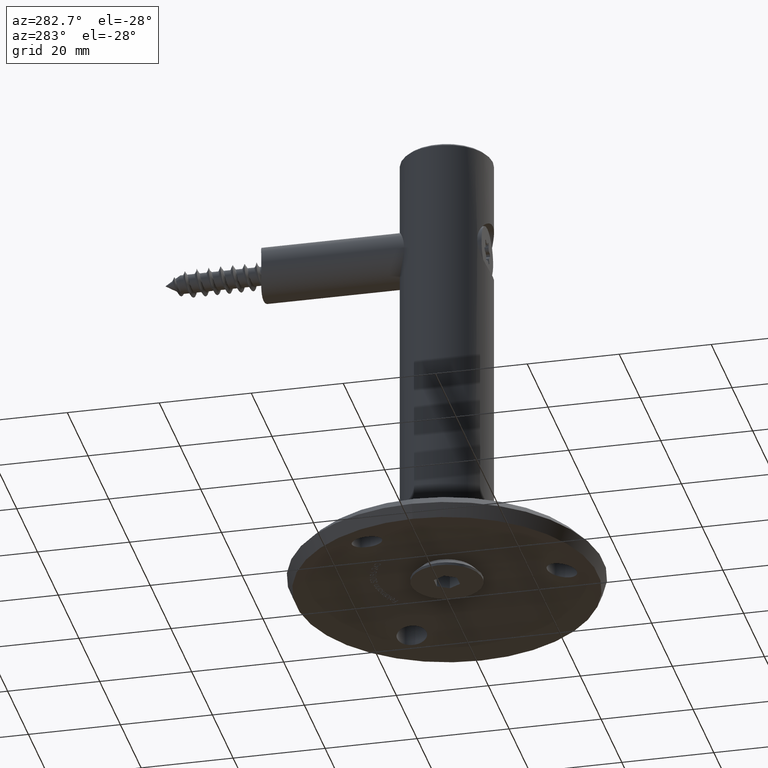
[diagram: clean part render]
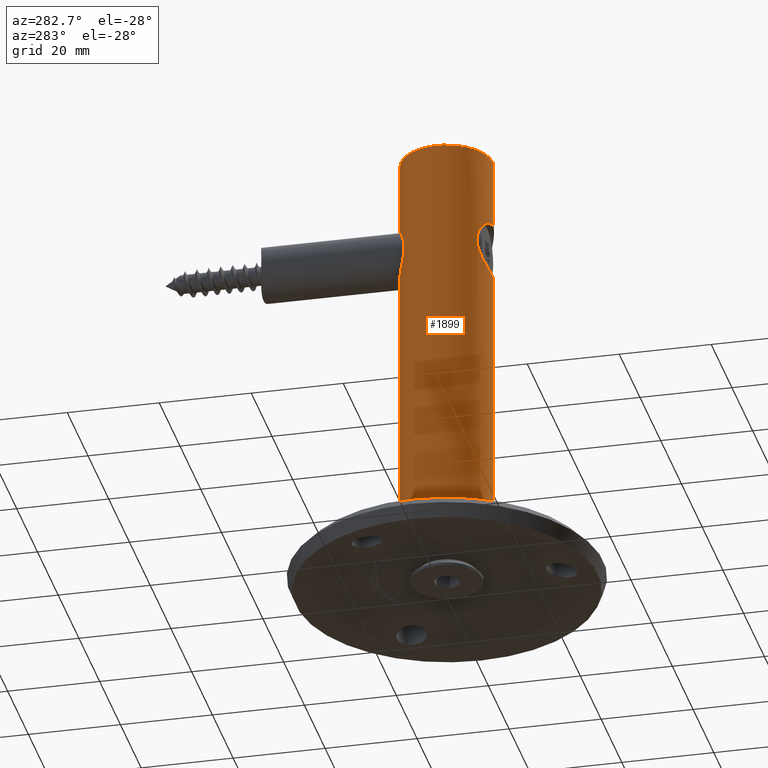
[diagram: same view with one face highlighted and labeled with its STEP entity id]
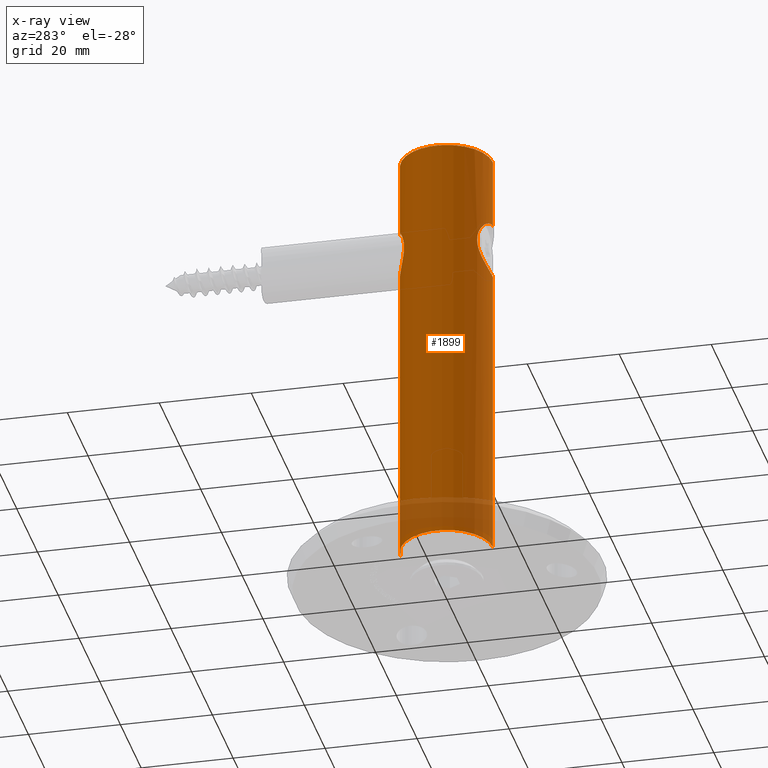
[diagram: x-ray of the same camera — body ghosted, the highlighted face saturated]
A machine part, auxiliary view. The second image highlights one B-rep face of the part: STEP entity #1899.
The next image is the same camera in x-ray: the body ghosted, the highlighted face saturated — about 8% of this face is hidden behind the body in this view.
In plain terms, the highlighted cylindrical surface (partial cylindrical patch) has radius 10 mm, axis along (0, 0, -1).
Its self-contained STEP definition (entity closure, byte-faithful):
#572 = CARTESIAN_POINT ( 'NONE',  ( -2.777311676397027362, -9.608021108032811952, 67.56603556446364678 ) ) ;
#907 = CARTESIAN_POINT ( 'NONE',  ( -1.403813005560766491, 9.902980164608125691, 67.11165916234632789 ) ) ;
#953 = CARTESIAN_POINT ( 'NONE',  ( 0.000000000000000000, 0.000000000000000000, 0.000000000000000000 ) ) ;
#1028 = DIRECTION ( 'NONE',  ( -0.000000000000000000, 1.224646799147353454E-16, -1.000000000000000000 ) ) ;
#1046 = CARTESIAN_POINT ( 'NONE',  ( -5.436598003498982479, -8.395571357975834204, 75.78795442250877556 ) ) ;
#1105 = CARTESIAN_POINT ( 'NONE',  ( 0.000000000000000000, 9.999999999999994671, 79.04999999999999716 ) ) ;
#1199 = CARTESIAN_POINT ( 'NONE',  ( -1.609276841110042433, 9.877612619151967976, 78.84584649295069880 ) ) ;
#1299 = CARTESIAN_POINT ( 'NONE',  ( -5.423591002924554871, 8.403485511692805332, 75.70970173211745191 ) ) ;
#1345 = VERTEX_POINT ( 'NONE', #8361 ) ;
#1436 = CARTESIAN_POINT ( 'NONE',  ( -1.436448137794693158, -9.902756818177692821, 78.93946100229376839 ) ) ;
#1569 = B_SPLINE_CURVE_WITH_KNOTS ( 'NONE', 3,
 ( #21354, #14920, #7849, #1436, #19321, #23714, #23522, #10087, #21452, #3396, #5584, #3505, #14826, #1046, #21650, #19028, #5775, #8235 ),
 .UNSPECIFIED., .F., .F.,
 ( 4, 2, 2, 2, 2, 2, 2, 2, 4 ),
 ( 0.008697927336527633280, 0.009782168780050413959, 0.01086641022357319290, 0.01195065166709597185, 0.01303489311061875253, 0.01411913455414153321, 0.01520337599766431215, 0.01628761744118709109, 0.01737185888470987177 ),
 .UNSPECIFIED. ) ;
#1697 = B_SPLINE_CURVE_WITH_KNOTS ( 'NONE', 3,
 ( #12243, #9990, #27819, #10081, #10368, #8140 ),
 .UNSPECIFIED., .F., .F.,
 ( 4, 2, 4 ),
 ( 0.002051106008994781071, 0.003147755811804922674, 0.004244405614615064277 ),
 .UNSPECIFIED. ) ;
#1853 = ORIENTED_EDGE ( 'NONE', *, *, #19540, .T. ) ;
#1899 = ADVANCED_FACE ( 'NONE', ( #4509 ), #18926, .T. ) ;
#2404 = VERTEX_POINT ( 'NONE', #11992 ) ;
#2645 = CARTESIAN_POINT ( 'NONE',  ( -5.440551407277116169, -8.393070850260535565, 70.21920959023715625 ) ) ;
#3172 = CARTESIAN_POINT ( 'NONE',  ( -0.4084737172014522022, 9.999999999999987566, 66.95000000000001705 ) ) ;
#3396 = CARTESIAN_POINT ( 'NONE',  ( -4.197526623192088913, -9.080918269210894067, 77.43957995125818172 ) ) ;
#3416 = DIRECTION ( 'NONE',  ( -0.000000000000000000, 1.224646799147336690E-16, -1.000000000000000000 ) ) ;
#3505 = CARTESIAN_POINT ( 'NONE',  ( -4.888823053991232293, -8.727140546316647374, 76.66459596162073353 ) ) ;
#3563 = CARTESIAN_POINT ( 'NONE',  ( -2.718732791609658861, 9.625026792267307840, 78.40830560469777311 ) ) ;
#3636 = VECTOR ( 'NONE', #3831, 1000.000000000000000 ) ;
#3831 = DIRECTION ( 'NONE',  ( -0.000000000000000000, 1.224646799147353454E-16, -1.000000000000000000 ) ) ;
#4457 = VERTEX_POINT ( 'NONE', #12058 ) ;
#4509 = FACE_OUTER_BOUND ( 'NONE', #15328, .T. ) ;
#4672 = EDGE_CURVE ( 'NONE', #4904, #13847, #5915, .T. ) ;
#4828 = VECTOR ( 'NONE', #1028, 1000.000000000000000 ) ;
#4904 = VERTEX_POINT ( 'NONE', #16791 ) ;
#5162 = VERTEX_POINT ( 'NONE', #17046 ) ;
#5292 = VECTOR ( 'NONE', #17023, 1000.000000000000000 ) ;
#5442 = CARTESIAN_POINT ( 'NONE',  ( -5.887058039441871671, 8.083627796943861910, 71.59100292581754843 ) ) ;
#5544 = CARTESIAN_POINT ( 'NONE',  ( -5.848076573791711752, 8.112340959712485144, 74.60230142844285695 ) ) ;
#5584 = CARTESIAN_POINT ( 'NONE',  ( -4.442803994972023496, -8.962425209208769061, 77.19420398614846590 ) ) ;
#5737 = CARTESIAN_POINT ( 'NONE',  ( -4.557547830525050969, 8.906156173625262795, 69.00248699821740672 ) ) ;
#5775 = CARTESIAN_POINT ( 'NONE',  ( -5.934279884923734372, -8.049290086307204106, 74.45847335496145547 ) ) ;
#5915 = LINE ( 'NONE', #27832, #4828 ) ;
#6503 = CARTESIAN_POINT ( 'NONE',  ( -5.934115237488820860, -8.049413571883382801, 71.54062856812085158 ) ) ;
#6559 = B_SPLINE_CURVE_WITH_KNOTS ( 'NONE', 3,
 ( #12502, #3172, #7809, #907, #28176, #21312, #10050, #8004, #14786, #23676, #7621, #28073, #9866, #5737, #12206, #14682, #18896, #25537, #21209, #25819, #5442, #18988, #12106, #27785, #19086, #10241, #21120, #5544, #7715, #1299, #23393, #23485, #9958, #17031, #7906, #25726, #25914, #3563, #19281, #25634, #1199, #21412, #10156, #16833, #16932, #1105 ),
 .UNSPECIFIED., .F., .F.,
 ( 4, 2, 2, 2, 2, 2, 2, 2, 2, 2, 2, 2, 2, 2, 2, 2, 2, 2, 2, 2, 2, 2, 4 ),
 ( 0.01941990436530885780, 0.02063116917293929958, 0.02123680157675451527, 0.02184243398056973096, 0.02244806638438494664, 0.02305369878820016233, 0.02426496359583059370, 0.02547622840346102854, 0.02668749321109145992, 0.02729312561490667560, 0.02789875801872189476, 0.02850439042253710697, 0.02911002282635232613, 0.03032128763398279914, 0.03153255244161327214, 0.03274381724924374515, 0.03395508205687421122, 0.03516634686450469116, 0.03577197926831991726, 0.03637761167213515723, 0.03758887647976561636, 0.03819450888358084939, 0.03880014128739607548 ),
 .UNSPECIFIED. ) ;
#6750 = ORIENTED_EDGE ( 'NONE', *, *, #14538, .F. ) ;
#7175 = CARTESIAN_POINT ( 'NONE',  ( -1.787012622460111277, -9.845037829623526804, 67.15662796590193295 ) ) ;
#7437 = CARTESIAN_POINT ( 'NONE',  ( 0.000000000000000000, -2.449293598294707400E-16, 2.000000000000000444 ) ) ;
#7593 = ORIENTED_EDGE ( 'NONE', *, *, #8563, .F. ) ;
#7621 = CARTESIAN_POINT ( 'NONE',  ( -3.230484222280025186, 9.465388038487750677, 67.88094969924306099 ) ) ;
#7715 = CARTESIAN_POINT ( 'NONE',  ( -5.729295447384023632, 8.198114526451783846, 74.98317838850394423 ) ) ;
#7809 = CARTESIAN_POINT ( 'NONE',  ( -0.8103770617381570451, 9.975074806668049021, 66.99094149490500172 ) ) ;
#7849 = CARTESIAN_POINT ( 'NONE',  ( -0.7251650388042697459, -9.980085747078266678, 79.06751315753319886 ) ) ;
#7906 = CARTESIAN_POINT ( 'NONE',  ( -3.712617640283946585, 9.291548674023585974, 77.79261931526806961 ) ) ;
#8004 = CARTESIAN_POINT ( 'NONE',  ( -2.537553960302305178, 9.674504622938620457, 67.50431735431011759 ) ) ;
#8140 = CARTESIAN_POINT ( 'NONE',  ( -5.999999999999998224, -7.999999999999994671, 71.89999999999999147 ) ) ;
#8235 = CARTESIAN_POINT ( 'NONE',  ( -5.999999999999998224, -7.999999999999994671, 74.09999999999999432 ) ) ;
#8361 = CARTESIAN_POINT ( 'NONE',  ( -5.999999999999998224, -7.999999999999994671, 74.09999999999999432 ) ) ;
#8563 = EDGE_CURVE ( 'NONE', #1345, #13874, #1697, .T. ) ;
#8702 = ORIENTED_EDGE ( 'NONE', *, *, #24557, .F. ) ;
#9030 = AXIS2_PLACEMENT_3D ( 'NONE', #7437, #18911, #16565 ) ;
#9243 = CARTESIAN_POINT ( 'NONE',  ( -4.197116238931466903, -9.081158167621740773, 68.55989034751920030 ) ) ;
#9718 = CARTESIAN_POINT ( 'NONE',  ( 0.000000000000000000, 9.999999999999994671, 79.04999999999999716 ) ) ;
#9866 = CARTESIAN_POINT ( 'NONE',  ( -4.012844323545344594, 9.164493463990080357, 68.45594532802100218 ) ) ;
#9958 = CARTESIAN_POINT ( 'NONE',  ( -4.558202457909661831, 8.905892511106925369, 76.99701834412348944 ) ) ;
#9990 = CARTESIAN_POINT ( 'NONE',  ( -6.037779974283359330, -7.971665019287484277, 73.73679706541230416 ) ) ;
#10031 = CARTESIAN_POINT ( 'NONE',  ( 1.224646799147352665E-15, -9.999999999999994671, -1.224646799147352862E-15 ) ) ;
#10050 = CARTESIAN_POINT ( 'NONE',  ( -2.172773312258164502, 9.762903048491537561, 67.35015363243199715 ) ) ;
#10081 = CARTESIAN_POINT ( 'NONE',  ( -6.056865859714453570, -7.957033113640100908, 72.62734759611845448 ) ) ;
#10087 = CARTESIAN_POINT ( 'NONE',  ( -3.385571134193873011, -9.414909622404428191, 78.08651020804522602 ) ) ;
#10156 = CARTESIAN_POINT ( 'NONE',  ( -0.8191968535057896350, 9.968482339578155660, 78.99778431032966353 ) ) ;
#10241 = CARTESIAN_POINT ( 'NONE',  ( -6.050107430202721126, 7.962173076571638752, 73.40452276754869843 ) ) ;
#10368 = CARTESIAN_POINT ( 'NONE',  ( -6.037620414525908252, -7.971784689105573918, 72.26166898510129499 ) ) ;
#10599 = AXIS2_PLACEMENT_3D ( 'NONE', #953, #25675, #14926 ) ;
#11264 = LINE ( 'NONE', #25528, #5292 ) ;
#11482 = CARTESIAN_POINT ( 'NONE',  ( -1.442266533413711471, -9.901847488652895990, 67.06205422235507285 ) ) ;
#11773 = CARTESIAN_POINT ( 'NONE',  ( -5.838174895473802195, -8.120235270157003526, 71.19730428107988018 ) ) ;
#11992 = CARTESIAN_POINT ( 'NONE',  ( 0.000000000000000000, 9.999999999999982236, 94.49999999999994316 ) ) ;
#12058 = CARTESIAN_POINT ( 'NONE',  ( 1.224646799147353651E-15, -10.00000000000000355, 66.90000000000000568 ) ) ;
#12106 = CARTESIAN_POINT ( 'NONE',  ( -5.998146223145053746, 8.001431955169667987, 72.18365544772787246 ) ) ;
#12206 = CARTESIAN_POINT ( 'NONE',  ( -4.805369897217455666, 8.773264498411421641, 69.30416128083891181 ) ) ;
#12243 = CARTESIAN_POINT ( 'NONE',  ( -5.999999999999998224, -7.999999999999994671, 74.09999999999999432 ) ) ;
#12502 = CARTESIAN_POINT ( 'NONE',  ( 4.029265264640274852E-17, 9.999999999999985789, 66.94999999999998863 ) ) ;
#12853 = VECTOR ( 'NONE', #28446, 1000.000000000000000 ) ;
#13847 = VERTEX_POINT ( 'NONE', #26722 ) ;
#13858 = CARTESIAN_POINT ( 'NONE',  ( -5.086953068162411995, -8.611976915611837313, 69.61543157838890750 ) ) ;
#13869 = ORIENTED_EDGE ( 'NONE', *, *, #4672, .F. ) ;
#13874 = VERTEX_POINT ( 'NONE', #18414 ) ;
#14058 = CARTESIAN_POINT ( 'NONE',  ( -5.591957626596479436, -8.291713746578073696, 70.53747936709092414 ) ) ;
#14150 = CARTESIAN_POINT ( 'NONE',  ( -0.7345510077027587181, -9.979336213347544060, 66.93371879742298347 ) ) ;
#14311 = CARTESIAN_POINT ( 'NONE',  ( 1.224646799147352270E-15, -9.999999999999987566, 1.999999999999999112 ) ) ;
#14538 = EDGE_CURVE ( 'NONE', #27806, #28278, #19065, .T. ) ;
#14682 = CARTESIAN_POINT ( 'NONE',  ( -5.235192493834924576, 8.523761456109879120, 69.94327573379139551 ) ) ;
#14786 = CARTESIAN_POINT ( 'NONE',  ( -2.715194575230796215, 9.626026976772983801, 67.58991585138296898 ) ) ;
#14826 = CARTESIAN_POINT ( 'NONE',  ( -5.087154368414266159, -8.611798691936368044, 76.38380675357785776 ) ) ;
#14920 = CARTESIAN_POINT ( 'NONE',  ( -0.3649548137492562572, -10.00000000000001066, 79.10000000000002274 ) ) ;
#14926 = DIRECTION ( 'NONE',  ( 0.000000000000000000, 1.000000000000000000, 1.224646799147353454E-16 ) ) ;
#15328 = EDGE_LOOP ( 'NONE', ( #13869, #17327, #22247, #16496, #1853, #6750, #16312, #27266, #7593, #8702 ) ) ;
#15345 = B_SPLINE_CURVE_WITH_KNOTS ( 'NONE', 3,
 ( #17992, #6503, #11773, #14058, #2645, #13858, #22676, #18281, #9243, #20499, #20411, #20589, #572, #22779, #16405, #7175, #11482, #14150, #25307, #25103 ),
 .UNSPECIFIED., .F., .F.,
 ( 4, 2, 2, 2, 2, 2, 2, 2, 2, 4 ),
 ( -0.008711526542428404962, -0.007622585724624861281, -0.006533644906821316732, -0.005444704089017772183, -0.004355763271214228502, -0.003266822453410684821, -0.002722352044508904306, -0.002177881635607122925, -0.001088940817803561029, 1.734723475976807094E-18 ),
 .UNSPECIFIED. ) ;
#16312 = ORIENTED_EDGE ( 'NONE', *, *, #22029, .F. ) ;
#16405 = CARTESIAN_POINT ( 'NONE',  ( -2.290926676104617421, -9.735563720689203393, 67.34369752619787164 ) ) ;
#16496 = ORIENTED_EDGE ( 'NONE', *, *, #23409, .F. ) ;
#16565 = DIRECTION ( 'NONE',  ( 0.000000000000000000, 1.000000000000000000, 1.301042606982607046E-16 ) ) ;
#16791 = CARTESIAN_POINT ( 'NONE',  ( 1.224646799147353256E-15, -10.00000000000000711, 94.49999999999994316 ) ) ;
#16833 = CARTESIAN_POINT ( 'NONE',  ( -0.4114436652122809845, 9.993619852167288542, 79.03947135338742669 ) ) ;
#16932 = CARTESIAN_POINT ( 'NONE',  ( -0.2050936952828282811, 9.999999999999998224, 79.05000000000003979 ) ) ;
#17023 = DIRECTION ( 'NONE',  ( -0.000000000000000000, 1.224646799147353454E-16, -1.000000000000000000 ) ) ;
#17031 = CARTESIAN_POINT ( 'NONE',  ( -4.009665901186634684, 9.165953874395464496, 77.54708089343203881 ) ) ;
#17046 = CARTESIAN_POINT ( 'NONE',  ( 4.029265264640274852E-17, 9.999999999999985789, 66.94999999999998863 ) ) ;
#17327 = ORIENTED_EDGE ( 'NONE', *, *, #25629, .T. ) ;
#17992 = CARTESIAN_POINT ( 'NONE',  ( -5.999999999999998224, -7.999999999999994671, 71.89999999999999147 ) ) ;
#18099 = VERTEX_POINT ( 'NONE', #9718 ) ;
#18281 = CARTESIAN_POINT ( 'NONE',  ( -4.443868385038916458, -8.961860785460713075, 68.80707233755414620 ) ) ;
#18414 = CARTESIAN_POINT ( 'NONE',  ( -5.999999999999998224, -7.999999999999994671, 71.89999999999999147 ) ) ;
#18896 = CARTESIAN_POINT ( 'NONE',  ( -5.420043719548607086, 8.405791692266086912, 70.28310870804058652 ) ) ;
#18911 = DIRECTION ( 'NONE',  ( -0.000000000000000000, 1.224646799147353454E-16, -1.000000000000000000 ) ) ;
#18924 = AXIS2_PLACEMENT_3D ( 'NONE', #28226, #3416, #19141 ) ;
#18926 = CYLINDRICAL_SURFACE ( 'NONE', #10599, 9.999999999999994671 ) ;
#18988 = CARTESIAN_POINT ( 'NONE',  ( -5.967448871653360243, 8.024465383032298504, 71.98398864228050797 ) ) ;
#19028 = CARTESIAN_POINT ( 'NONE',  ( -5.838105033781811670, -8.120325416966336363, 74.80375966365100737 ) ) ;
#19065 = CIRCLE ( 'NONE', #9030, 9.999999999999987566 ) ;
#19086 = CARTESIAN_POINT ( 'NONE',  ( -6.049945966138785991, 7.962295762615829275, 72.79533331141608699 ) ) ;
#19141 = DIRECTION ( 'NONE',  ( 0.000000000000000000, -1.000000000000000000, 0.000000000000000000 ) ) ;
#19281 = CARTESIAN_POINT ( 'NONE',  ( -2.538213815823208819, 9.674347106947191577, 78.49540841507490541 ) ) ;
#19321 = CARTESIAN_POINT ( 'NONE',  ( -1.789271686033192532, -9.844556626790330611, 78.84255116969259802 ) ) ;
#19522 = LINE ( 'NONE', #26182, #12853 ) ;
#19540 = EDGE_CURVE ( 'NONE', #5162, #28278, #19522, .T. ) ;
#20411 = CARTESIAN_POINT ( 'NONE',  ( -3.384054400561754328, -9.415323982167938865, 67.91277092575776919 ) ) ;
#20499 = CARTESIAN_POINT ( 'NONE',  ( -3.666632961282195513, -9.308008439816980228, 68.11265295109973295 ) ) ;
#20589 = CARTESIAN_POINT ( 'NONE',  ( -2.932480379695684203, -9.561673299767509349, 67.64827226190978138 ) ) ;
#21113 = CARTESIAN_POINT ( 'NONE',  ( 0.000000000000000000, 9.999999999999987566, 2.000000000000001776 ) ) ;
#21120 = CARTESIAN_POINT ( 'NONE',  ( -6.009739666643318934, 7.993316245384894714, 73.80647295038042444 ) ) ;
#21209 = CARTESIAN_POINT ( 'NONE',  ( -5.719274872457605241, 8.203360804838673914, 71.01704708012771050 ) ) ;
#21312 = CARTESIAN_POINT ( 'NONE',  ( -1.985635104201227019, 9.802827385932335602, 67.28158622169590330 ) ) ;
#21354 = CARTESIAN_POINT ( 'NONE',  ( 2.311154935784771050E-15, -10.00000000000001776, 79.10000000000002274 ) ) ;
#21412 = CARTESIAN_POINT ( 'NONE',  ( -1.019333223322620885, 9.949884950650000448, 78.96688847494655761 ) ) ;
#21452 = CARTESIAN_POINT ( 'NONE',  ( -3.670004657196928033, -9.306630549272245645, 77.88468685917253254 ) ) ;
#21650 = CARTESIAN_POINT ( 'NONE',  ( -5.588327609558261244, -8.294199767979240079, 75.47135870280536096 ) ) ;
#21913 = LINE ( 'NONE', #10031, #3636 ) ;
#22029 = EDGE_CURVE ( 'NONE', #4457, #27806, #21913, .T. ) ;
#22247 = ORIENTED_EDGE ( 'NONE', *, *, #28283, .T. ) ;
#22676 = CARTESIAN_POINT ( 'NONE',  ( -4.887575619970187191, -8.727801528483556837, 69.33391037137317880 ) ) ;
#22779 = CARTESIAN_POINT ( 'NONE',  ( -2.457036283049910175, -9.694869904440784225, 67.41390992390012116 ) ) ;
#23393 = CARTESIAN_POINT ( 'NONE',  ( -5.235132894256063096, 8.523828446510403722, 76.05701206750913457 ) ) ;
#23409 = EDGE_CURVE ( 'NONE', #5162, #18099, #6559, .T. ) ;
#23485 = CARTESIAN_POINT ( 'NONE',  ( -4.803483055192233842, 8.774327230309054926, 76.69844423236303044 ) ) ;
#23522 = CARTESIAN_POINT ( 'NONE',  ( -2.776061618095941874, -9.612288853091376595, 78.44317553398471432 ) ) ;
#23676 = CARTESIAN_POINT ( 'NONE',  ( -3.061321818352621627, 9.521606254377575240, 67.77796966679066770 ) ) ;
#23714 = CARTESIAN_POINT ( 'NONE',  ( -2.457174186745282096, -9.699437270301510594, 78.59456811138349508 ) ) ;
#23934 = CIRCLE ( 'NONE', #18924, 9.999999999999994671 ) ;
#24557 = EDGE_CURVE ( 'NONE', #13847, #1345, #1569, .T. ) ;
#25103 = CARTESIAN_POINT ( 'NONE',  ( 1.224646799147353651E-15, -10.00000000000000355, 66.90000000000000568 ) ) ;
#25307 = CARTESIAN_POINT ( 'NONE',  ( -0.3687708561522865525, -9.999999999999996447, 66.90000000000000568 ) ) ;
#25421 = EDGE_CURVE ( 'NONE', #13874, #4457, #15345, .T. ) ;
#25528 = CARTESIAN_POINT ( 'NONE',  ( 0.000000000000000000, 9.999999999999994671, 1.224646799147352862E-15 ) ) ;
#25537 = CARTESIAN_POINT ( 'NONE',  ( -5.650386224439183813, 8.251162796149685619, 70.82868621148307398 ) ) ;
#25629 = EDGE_CURVE ( 'NONE', #4904, #2404, #23934, .T. ) ;
#25634 = CARTESIAN_POINT ( 'NONE',  ( -1.988704004959023663, 9.807504354462141194, 78.72762852094189157 ) ) ;
#25675 = DIRECTION ( 'NONE',  ( -0.000000000000000000, 1.224646799147353454E-16, -1.000000000000000000 ) ) ;
#25726 = CARTESIAN_POINT ( 'NONE',  ( -3.231176350246905304, 9.465125515268093537, 78.11855026395286927 ) ) ;
#25819 = CARTESIAN_POINT ( 'NONE',  ( -5.837361778259227307, 8.119756217449305424, 71.39768454451899515 ) ) ;
#25914 = CARTESIAN_POINT ( 'NONE',  ( -3.064673096970013333, 9.520526642615179114, 78.22006286501299144 ) ) ;
#26182 = CARTESIAN_POINT ( 'NONE',  ( 0.000000000000000000, 9.999999999999994671, 1.224646799147352862E-15 ) ) ;
#26722 = CARTESIAN_POINT ( 'NONE',  ( 2.311154935784771050E-15, -10.00000000000001776, 79.10000000000002274 ) ) ;
#27266 = ORIENTED_EDGE ( 'NONE', *, *, #25421, .F. ) ;
#27785 = CARTESIAN_POINT ( 'NONE',  ( -6.039532502095487310, 7.970239557477037273, 72.58984917605121723 ) ) ;
#27806 = VERTEX_POINT ( 'NONE', #14311 ) ;
#27819 = CARTESIAN_POINT ( 'NONE',  ( -6.057055091978226002, -7.956889067146800443, 73.36719545397994580 ) ) ;
#27832 = CARTESIAN_POINT ( 'NONE',  ( 1.224646799147352665E-15, -9.999999999999994671, -1.224646799147352862E-15 ) ) ;
#28073 = CARTESIAN_POINT ( 'NONE',  ( -3.716010006842555669, 9.290299550995953837, 68.20974042484493793 ) ) ;
#28176 = CARTESIAN_POINT ( 'NONE',  ( -1.601219790535092002, 9.872905687173354039, 67.16226944015626543 ) ) ;
#28226 = CARTESIAN_POINT ( 'NONE',  ( 0.000000000000000000, -1.157291225194248412E-14, 94.49999999999994316 ) ) ;
#28278 = VERTEX_POINT ( 'NONE', #21113 ) ;
#28283 = EDGE_CURVE ( 'NONE', #2404, #18099, #11264, .T. ) ;
#28446 = DIRECTION ( 'NONE',  ( -0.000000000000000000, 1.224646799147353454E-16, -1.000000000000000000 ) ) ;